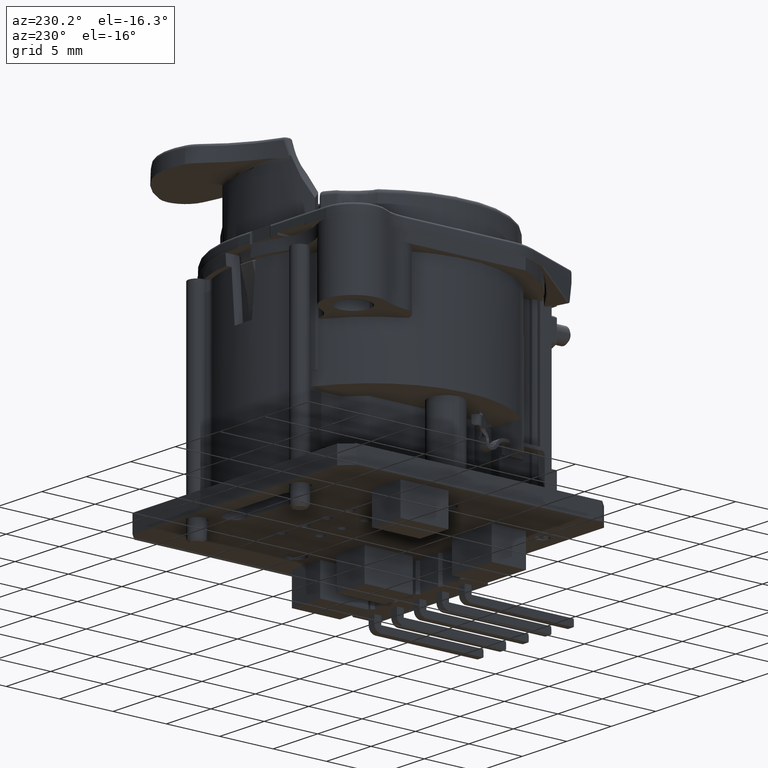
[diagram: clean part render]
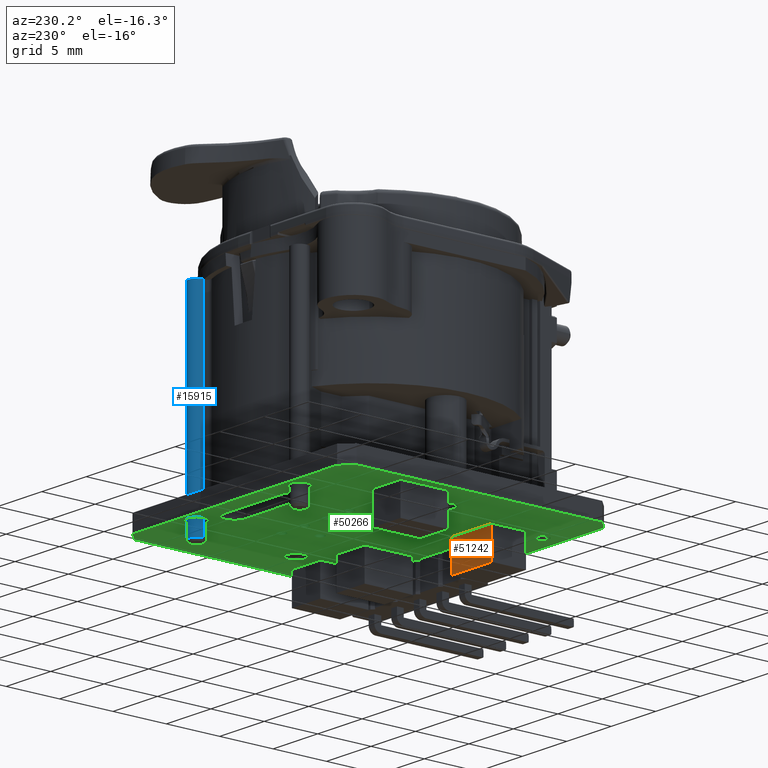
[diagram: same view with three faces highlighted in distinct colors, each labeled with its STEP entity id]
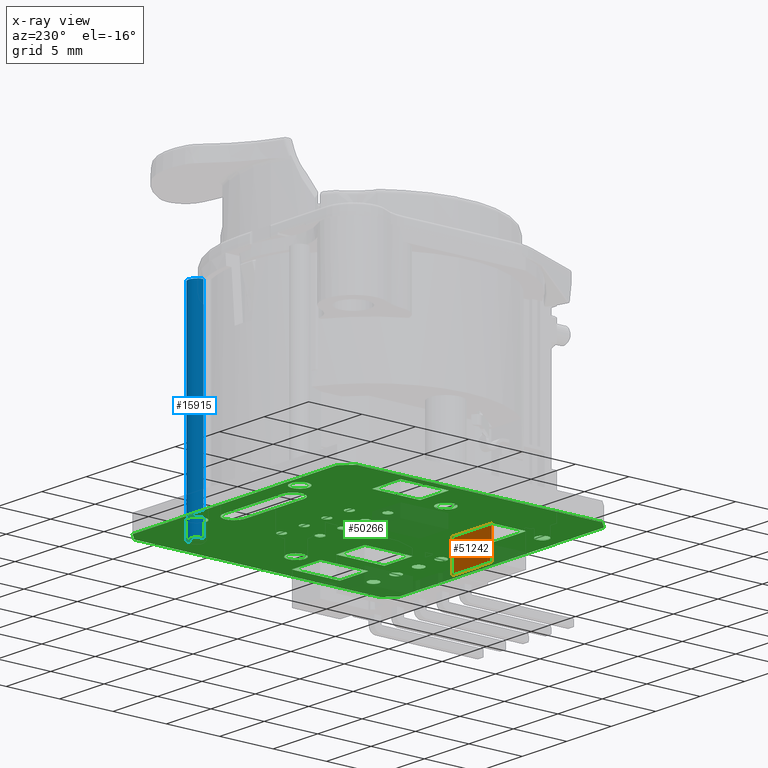
[diagram: x-ray of the same camera — body ghosted, the three highlighted faces saturated]
A machine part, auxiliary view with three faces highlighted in distinct colors.
The next image is the same camera in x-ray (body ghosted, the three faces saturated) — at least one of them is partly hidden behind the body in this view.
Their STEP definitions:

[orange] entity #51242 — the highlighted planar face has unit normal (0, 1, 0).
#49218=DIRECTION('',(1.E0,0.E0,0.E0));
#49219=VECTOR('',#49218,4.5E0);
#49220=CARTESIAN_POINT('',(-7.199764615385E0,-5.316E0,-2.26E1));
#49221=LINE('',#49220,#49219);
#49726=DIRECTION('',(1.E0,0.E0,0.E0));
#49727=VECTOR('',#49726,4.5E0);
#49728=CARTESIAN_POINT('',(-7.199764615385E0,-5.316E0,-2.55E1));
#49729=LINE('',#49728,#49727);
#49770=DIRECTION('',(0.E0,0.E0,-1.E0));
#49771=VECTOR('',#49770,2.9E0);
#49772=CARTESIAN_POINT('',(-2.699764615385E0,-5.316E0,-2.26E1));
#49773=LINE('',#49772,#49771);
#49774=DIRECTION('',(0.E0,0.E0,-1.E0));
#49775=VECTOR('',#49774,2.9E0);
#49776=CARTESIAN_POINT('',(-7.199764615385E0,-5.316E0,-2.26E1));
#49777=LINE('',#49776,#49775);
#50018=CARTESIAN_POINT('',(-2.699764615385E0,-5.316E0,-2.55E1));
#50020=VERTEX_POINT('',#50018);
#50024=CARTESIAN_POINT('',(-7.199764615385E0,-5.316E0,-2.55E1));
#50025=VERTEX_POINT('',#50024);
#50050=CARTESIAN_POINT('',(-2.699764615385E0,-5.316E0,-2.26E1));
#50052=VERTEX_POINT('',#50050);
#50056=CARTESIAN_POINT('',(-7.199764615385E0,-5.316E0,-2.26E1));
#50057=VERTEX_POINT('',#50056);
#51230=CARTESIAN_POINT('',(-7.199764615385E0,-5.316E0,-2.26E1));
#51231=DIRECTION('',(0.E0,1.E0,0.E0));
#51232=DIRECTION('',(1.E0,0.E0,0.E0));
#51233=AXIS2_PLACEMENT_3D('',#51230,#51231,#51232);
#51234=PLANE('',#51233);
#51235=ORIENTED_EDGE('',*,*,#50252,.F.);
#51237=ORIENTED_EDGE('',*,*,#51236,.T.);
#51238=ORIENTED_EDGE('',*,*,#51139,.T.);
#51239=ORIENTED_EDGE('',*,*,#51222,.F.);
#51240=EDGE_LOOP('',(#51235,#51237,#51238,#51239));
#51241=FACE_OUTER_BOUND('',#51240,.F.);
#51242=ADVANCED_FACE('',(#51241),#51234,.T.);
#50252=EDGE_CURVE('',#50057,#50052,#49221,.T.);
#51139=EDGE_CURVE('',#50025,#50020,#49729,.T.);
#51222=EDGE_CURVE('',#50052,#50020,#49773,.T.);
#51236=EDGE_CURVE('',#50057,#50025,#49777,.T.);

[blue] entity #15915 — the highlighted cylindrical surface (edge-blend (fillet) strip) has radius 0.75 mm, axis along (0, 0, -1).
#5636=CARTESIAN_POINT('',(5.79E0,1.15E1,-4.7E0));
#5637=DIRECTION('',(0.E0,0.E0,-1.E0));
#5638=DIRECTION('',(-1.E0,0.E0,0.E0));
#5639=AXIS2_PLACEMENT_3D('',#5636,#5637,#5638);
#5661=DIRECTION('',(0.E0,0.E0,-1.E0));
#5662=VECTOR('',#5661,1.94E1);
#5663=CARTESIAN_POINT('',(6.54E0,1.15E1,-4.7E0));
#5664=LINE('',#5663,#5662);
#5759=DIRECTION('',(0.E0,0.E0,-1.E0));
#5760=VECTOR('',#5759,1.94E1);
#5761=CARTESIAN_POINT('',(5.04E0,1.15E1,-4.7E0));
#5762=LINE('',#5761,#5760);
#5768=CARTESIAN_POINT('',(5.79E0,1.15E1,-2.41E1));
#5769=DIRECTION('',(0.E0,0.E0,-1.E0));
#5770=DIRECTION('',(-1.E0,0.E0,0.E0));
#5771=AXIS2_PLACEMENT_3D('',#5768,#5769,#5770);
#7152=CARTESIAN_POINT('',(5.04E0,1.15E1,-4.7E0));
#7153=CARTESIAN_POINT('',(6.54E0,1.15E1,-4.7E0));
#7154=VERTEX_POINT('',#7152);
#7155=VERTEX_POINT('',#7153);
#7733=CARTESIAN_POINT('',(5.04E0,1.15E1,-2.41E1));
#7734=CARTESIAN_POINT('',(6.54E0,1.15E1,-2.41E1));
#7735=VERTEX_POINT('',#7733);
#7736=VERTEX_POINT('',#7734);
#15903=CARTESIAN_POINT('',(5.79E0,1.15E1,-4.7E0));
#15904=DIRECTION('',(0.E0,0.E0,-1.E0));
#15905=DIRECTION('',(-1.E0,0.E0,0.E0));
#15906=AXIS2_PLACEMENT_3D('',#15903,#15904,#15905);
#15907=CYLINDRICAL_SURFACE('',#15906,7.5E-1);
#15908=ORIENTED_EDGE('',*,*,#15787,.F.);
#15909=ORIENTED_EDGE('',*,*,#15821,.T.);
#15911=ORIENTED_EDGE('',*,*,#15910,.T.);
#15912=ORIENTED_EDGE('',*,*,#15817,.F.);
#15913=EDGE_LOOP('',(#15908,#15909,#15911,#15912));
#15914=FACE_OUTER_BOUND('',#15913,.F.);
#15915=ADVANCED_FACE('',(#15914),#15907,.T.);
#5640=CIRCLE('',#5639,7.5E-1);
#5772=CIRCLE('',#5771,7.5E-1);
#15787=EDGE_CURVE('',#7154,#7155,#5640,.T.);
#15817=EDGE_CURVE('',#7155,#7736,#5664,.T.);
#15821=EDGE_CURVE('',#7154,#7735,#5762,.T.);
#15910=EDGE_CURVE('',#7735,#7736,#5772,.T.);

[green] entity #50266 — the highlighted planar face has unit normal (0, 0, 1).
#48934=DIRECTION('',(-7.071067812296E-1,-7.071067811435E-1,0.E0));
#48935=VECTOR('',#48934,1.414213562287E0);
#48936=CARTESIAN_POINT('',(1.251E1,-1.125600000012E1,-2.26E1));
#48937=LINE('',#48936,#48935);
#48938=DIRECTION('',(0.E0,1.E0,0.E0));
#48939=VECTOR('',#48938,2.300000000028E1);
#48940=CARTESIAN_POINT('',(1.251E1,-1.125600000012E1,-2.26E1));
#48941=LINE('',#48940,#48939);
#48942=DIRECTION('',(-7.071067811435E-1,7.071067812296E-1,0.E0));
#48943=VECTOR('',#48942,1.414213562059E0);
#48944=CARTESIAN_POINT('',(1.251E1,1.174400000016E1,-2.26E1));
#48945=LINE('',#48944,#48943);
#48946=DIRECTION('',(-1.E0,0.E0,0.E0));
#48947=VECTOR('',#48946,2.300000000028E1);
#48948=CARTESIAN_POINT('',(1.151000000028E1,1.2744E1,-2.26E1));
#48949=LINE('',#48948,#48947);
#48950=DIRECTION('',(-7.071067812296E-1,-7.071067811435E-1,0.E0));
#48951=VECTOR('',#48950,1.414213562287E0);
#48952=CARTESIAN_POINT('',(-1.149E1,1.2744E1,-2.26E1));
#48953=LINE('',#48952,#48951);
#48954=DIRECTION('',(0.E0,-1.E0,0.E0));
#48955=VECTOR('',#48954,2.300000000028E1);
#48956=CARTESIAN_POINT('',(-1.249E1,1.174400000012E1,-2.26E1));
#48957=LINE('',#48956,#48955);
#48958=DIRECTION('',(7.071067811437E-1,-7.071067812294E-1,0.E0));
#48959=VECTOR('',#48958,1.414213562058E0);
#48960=CARTESIAN_POINT('',(-1.249E1,-1.125600000016E1,-2.26E1));
#48961=LINE('',#48960,#48959);
#48962=DIRECTION('',(1.E0,0.E0,0.E0));
#48963=VECTOR('',#48962,2.300000000028E1);
#48964=CARTESIAN_POINT('',(-1.149000000028E1,-1.2256E1,-2.26E1));
#48965=LINE('',#48964,#48963);
#48966=DIRECTION('',(1.E0,0.E0,0.E0));
#48967=VECTOR('',#48966,6.599940000221E0);
#48968=CARTESIAN_POINT('',(-3.290930000181E0,9.049959999996E0,-2.26E1));
#48969=LINE('',#48968,#48967);
#48970=CARTESIAN_POINT('',(-3.290930989898E0,1.005297098971E1,-2.26E1));
#48971=DIRECTION('',(0.E0,0.E0,1.E0));
#48972=DIRECTION('',(-9.999999999995E-1,-9.808002866725E-7,0.E0));
#48973=AXIS2_PLACEMENT_3D('',#48970,#48971,#48972);
#48975=CARTESIAN_POINT('',(-3.290930989898E0,1.005297098971E1,-2.26E1));
#48976=DIRECTION('',(0.E0,0.E0,-1.E0));
#48977=DIRECTION('',(-9.999999999995E-1,-9.808002299998E-7,0.E0));
#48978=AXIS2_PLACEMENT_3D('',#48975,#48976,#48977);
#48980=DIRECTION('',(-9.999999036746E-1,-4.389200399742E-4,0.E0));
#48981=VECTOR('',#48980,6.734003167075E0);
#48982=CARTESIAN_POINT('',(3.309009984323E0,1.104993802056E1,-2.26E1));
#48983=LINE('',#48982,#48981);
#48984=CARTESIAN_POINT('',(3.309010989711E0,1.004994901028E1,-2.26E1));
#48985=DIRECTION('',(0.E0,0.E0,-1.E0));
#48986=DIRECTION('',(-1.005398978406E-6,9.999999999995E-1,0.E0));
#48987=AXIS2_PLACEMENT_3D('',#48984,#48985,#48986);
#48989=CARTESIAN_POINT('',(3.309010989711E0,1.004994901028E1,-2.26E1));
#48990=DIRECTION('',(0.E0,0.E0,-1.E0));
#48991=DIRECTION('',(9.999999999995E-1,9.899275929603E-7,0.E0));
#48992=AXIS2_PLACEMENT_3D('',#48989,#48990,#48991);
#48994=CARTESIAN_POINT('',(5.809E0,1.15E1,-2.26E1));
#48995=DIRECTION('',(0.E0,0.E0,-1.E0));
#48996=DIRECTION('',(-1.E0,1.337492208490E-13,0.E0));
#48997=AXIS2_PLACEMENT_3D('',#48994,#48995,#48996);
#48999=CARTESIAN_POINT('',(5.809E0,1.15E1,-2.26E1));
#49000=DIRECTION('',(0.E0,0.E0,-1.E0));
#49001=DIRECTION('',(1.E0,1.337492208490E-13,0.E0));
#49002=AXIS2_PLACEMENT_3D('',#48999,#49000,#49001);
#49004=CARTESIAN_POINT('',(-5.791E0,1.15E1,-2.26E1));
#49005=DIRECTION('',(0.E0,0.E0,-1.E0));
#49006=DIRECTION('',(-1.E0,1.337492208490E-13,0.E0));
#49007=AXIS2_PLACEMENT_3D('',#49004,#49005,#49006);
#49009=CARTESIAN_POINT('',(-5.791E0,1.15E1,-2.26E1));
#49010=DIRECTION('',(0.E0,0.E0,-1.E0));
#49011=DIRECTION('',(1.E0,1.337492208490E-13,0.E0));
#49012=AXIS2_PLACEMENT_3D('',#49009,#49010,#49011);
#49014=CARTESIAN_POINT('',(-3.200000000001E-1,-8.436E0,-2.26E1));
#49015=DIRECTION('',(0.E0,0.E0,-1.E0));
#49016=DIRECTION('',(1.E0,0.E0,0.E0));
#49017=AXIS2_PLACEMENT_3D('',#49014,#49015,#49016);
#49019=CARTESIAN_POINT('',(-3.200000000001E-1,-8.436E0,-2.26E1));
#49020=DIRECTION('',(0.E0,0.E0,-1.E0));
#49021=DIRECTION('',(-1.E0,2.842170943040E-13,0.E0));
#49022=AXIS2_PLACEMENT_3D('',#49019,#49020,#49021);
#49024=CARTESIAN_POINT('',(-6.591E0,-1.055E1,-2.26E1));
#49025=DIRECTION('',(0.E0,0.E0,-1.E0));
#49026=DIRECTION('',(-1.E0,2.842170943041E-13,0.E0));
#49027=AXIS2_PLACEMENT_3D('',#49024,#49025,#49026);
#49029=CARTESIAN_POINT('',(-6.591E0,-1.055E1,-2.26E1));
#49030=DIRECTION('',(0.E0,0.E0,-1.E0));
#49031=DIRECTION('',(1.E0,-4.736951571734E-14,0.E0));
#49032=AXIS2_PLACEMENT_3D('',#49029,#49030,#49031);
#49034=CARTESIAN_POINT('',(-8.421E0,1.989519660128E-13,-2.26E1));
#49035=DIRECTION('',(0.E0,0.E0,-1.E0));
#49036=DIRECTION('',(-1.E0,-6.687461042448E-14,0.E0));
#49037=AXIS2_PLACEMENT_3D('',#49034,#49035,#49036);
#49039=CARTESIAN_POINT('',(-8.421E0,1.421085471520E-13,-2.26E1));
#49040=DIRECTION('',(0.E0,0.E0,-1.E0));
#49041=DIRECTION('',(1.E0,0.E0,0.E0));
#49042=AXIS2_PLACEMENT_3D('',#49039,#49040,#49041);
#49044=CARTESIAN_POINT('',(8.429E0,1.421085471520E-13,-2.26E1));
#49045=DIRECTION('',(0.E0,0.E0,-1.E0));
#49046=DIRECTION('',(-1.E0,0.E0,0.E0));
#49047=AXIS2_PLACEMENT_3D('',#49044,#49045,#49046);
#49049=CARTESIAN_POINT('',(8.429E0,1.421085471520E-13,-2.26E1));
#49050=DIRECTION('',(0.E0,0.E0,-1.E0));
#49051=DIRECTION('',(1.E0,0.E0,0.E0));
#49052=AXIS2_PLACEMENT_3D('',#49049,#49050,#49051);
#49054=CARTESIAN_POINT('',(-4.431E0,2.11E0,-2.26E1));
#49055=DIRECTION('',(0.E0,0.E0,-1.E0));
#49056=DIRECTION('',(1.E0,0.E0,0.E0));
#49057=AXIS2_PLACEMENT_3D('',#49054,#49055,#49056);
#49059=CARTESIAN_POINT('',(-4.431E0,2.11E0,-2.26E1));
#49060=DIRECTION('',(0.E0,0.E0,-1.E0));
#49061=DIRECTION('',(-1.E0,-2.131628207280E-13,0.E0));
#49062=AXIS2_PLACEMENT_3D('',#49059,#49060,#49061);
#49064=CARTESIAN_POINT('',(-3.161E0,4.65E0,-2.26E1));
#49065=DIRECTION('',(0.E0,0.E0,-1.E0));
#49066=DIRECTION('',(-1.E0,0.E0,0.E0));
#49067=AXIS2_PLACEMENT_3D('',#49064,#49065,#49066);
#49069=CARTESIAN_POINT('',(-3.161E0,4.65E0,-2.26E1));
#49070=DIRECTION('',(0.E0,0.E0,-1.E0));
#49071=DIRECTION('',(1.E0,0.E0,0.E0));
#49072=AXIS2_PLACEMENT_3D('',#49069,#49070,#49071);
#49074=CARTESIAN_POINT('',(-1.891E0,2.11E0,-2.26E1));
#49075=DIRECTION('',(0.E0,0.E0,-1.E0));
#49076=DIRECTION('',(1.E0,0.E0,0.E0));
#49077=AXIS2_PLACEMENT_3D('',#49074,#49075,#49076);
#49079=CARTESIAN_POINT('',(-1.891E0,2.11E0,-2.26E1));
#49080=DIRECTION('',(0.E0,0.E0,-1.E0));
#49081=DIRECTION('',(-1.E0,0.E0,0.E0));
#49082=AXIS2_PLACEMENT_3D('',#49079,#49080,#49081);
#49084=CARTESIAN_POINT('',(-6.210000000001E-1,4.65E0,-2.26E1));
#49085=DIRECTION('',(0.E0,0.E0,-1.E0));
#49086=DIRECTION('',(-1.E0,-1.421085471520E-13,0.E0));
#49087=AXIS2_PLACEMENT_3D('',#49084,#49085,#49086);
#49089=CARTESIAN_POINT('',(-6.210000000001E-1,4.65E0,-2.26E1));
#49090=DIRECTION('',(0.E0,0.E0,-1.E0));
#49091=DIRECTION('',(1.E0,1.421085471520E-13,0.E0));
#49092=AXIS2_PLACEMENT_3D('',#49089,#49090,#49091);
#49094=CARTESIAN_POINT('',(6.489999999999E-1,2.11E0,-2.26E1));
#49095=DIRECTION('',(0.E0,0.E0,-1.E0));
#49096=DIRECTION('',(-1.E0,0.E0,0.E0));
#49097=AXIS2_PLACEMENT_3D('',#49094,#49095,#49096);
#49099=CARTESIAN_POINT('',(6.489999999999E-1,2.11E0,-2.26E1));
#49100=DIRECTION('',(0.E0,0.E0,-1.E0));
#49101=DIRECTION('',(1.E0,0.E0,0.E0));
#49102=AXIS2_PLACEMENT_3D('',#49099,#49100,#49101);
#49104=CARTESIAN_POINT('',(3.189E0,2.11E0,-2.26E1));
#49105=DIRECTION('',(0.E0,0.E0,-1.E0));
#49106=DIRECTION('',(-1.E0,-2.131628207280E-13,0.E0));
#49107=AXIS2_PLACEMENT_3D('',#49104,#49105,#49106);
#49109=CARTESIAN_POINT('',(3.189E0,2.11E0,-2.26E1));
#49110=DIRECTION('',(0.E0,0.E0,-1.E0));
#49111=DIRECTION('',(1.E0,0.E0,0.E0));
#49112=AXIS2_PLACEMENT_3D('',#49109,#49110,#49111);
#49114=CARTESIAN_POINT('',(1.919E0,4.65E0,-2.26E1));
#49115=DIRECTION('',(0.E0,0.E0,-1.E0));
#49116=DIRECTION('',(-1.E0,1.421085471520E-13,0.E0));
#49117=AXIS2_PLACEMENT_3D('',#49114,#49115,#49116);
#49119=CARTESIAN_POINT('',(1.919E0,4.65E0,-2.26E1));
#49120=DIRECTION('',(0.E0,0.E0,-1.E0));
#49121=DIRECTION('',(1.E0,0.E0,0.E0));
#49122=AXIS2_PLACEMENT_3D('',#49119,#49120,#49121);
#49124=CARTESIAN_POINT('',(4.459E0,4.65E0,-2.26E1));
#49125=DIRECTION('',(0.E0,0.E0,-1.E0));
#49126=DIRECTION('',(-1.E0,0.E0,0.E0));
#49127=AXIS2_PLACEMENT_3D('',#49124,#49125,#49126);
#49129=CARTESIAN_POINT('',(4.459E0,4.65E0,-2.26E1));
#49130=DIRECTION('',(0.E0,0.E0,-1.E0));
#49131=DIRECTION('',(1.E0,1.421085471520E-13,0.E0));
#49132=AXIS2_PLACEMENT_3D('',#49129,#49130,#49131);
#49134=CARTESIAN_POINT('',(2.22E0,-8.436E0,-2.26E1));
#49135=DIRECTION('',(0.E0,0.E0,-1.E0));
#49136=DIRECTION('',(-1.E0,0.E0,0.E0));
#49137=AXIS2_PLACEMENT_3D('',#49134,#49135,#49136);
#49139=CARTESIAN_POINT('',(2.22E0,-8.436E0,-2.26E1));
#49140=DIRECTION('',(0.E0,0.E0,-1.E0));
#49141=DIRECTION('',(1.E0,0.E0,0.E0));
#49142=AXIS2_PLACEMENT_3D('',#49139,#49140,#49141);
#49144=CARTESIAN_POINT('',(4.76E0,-8.436E0,-2.26E1));
#49145=DIRECTION('',(0.E0,0.E0,-1.E0));
#49146=DIRECTION('',(-1.E0,0.E0,0.E0));
#49147=AXIS2_PLACEMENT_3D('',#49144,#49145,#49146);
#49149=CARTESIAN_POINT('',(4.76E0,-8.436E0,-2.26E1));
#49150=DIRECTION('',(0.E0,0.E0,-1.E0));
#49151=DIRECTION('',(1.E0,0.E0,0.E0));
#49152=AXIS2_PLACEMENT_3D('',#49149,#49150,#49151);
#49154=CARTESIAN_POINT('',(7.3E0,-8.436E0,-2.26E1));
#49155=DIRECTION('',(0.E0,0.E0,-1.E0));
#49156=DIRECTION('',(-1.E0,5.684341886081E-14,0.E0));
#49157=AXIS2_PLACEMENT_3D('',#49154,#49155,#49156);
#49159=CARTESIAN_POINT('',(7.3E0,-8.436E0,-2.26E1));
#49160=DIRECTION('',(0.E0,0.E0,-1.E0));
#49161=DIRECTION('',(1.E0,0.E0,0.E0));
#49162=AXIS2_PLACEMENT_3D('',#49159,#49160,#49161);
#49164=CARTESIAN_POINT('',(9.84E0,-8.436E0,-2.26E1));
#49165=DIRECTION('',(0.E0,0.E0,-1.E0));
#49166=DIRECTION('',(-1.E0,-1.705302565824E-13,0.E0));
#49167=AXIS2_PLACEMENT_3D('',#49164,#49165,#49166);
#49169=CARTESIAN_POINT('',(9.84E0,-8.436E0,-2.26E1));
#49170=DIRECTION('',(0.E0,0.E0,-1.E0));
#49171=DIRECTION('',(1.E0,0.E0,0.E0));
#49172=AXIS2_PLACEMENT_3D('',#49169,#49170,#49171);
#49174=DIRECTION('',(1.E0,0.E0,0.E0));
#49175=VECTOR('',#49174,3.2E0);
#49176=CARTESIAN_POINT('',(7.936E0,-1.866E0,-2.26E1));
#49177=LINE('',#49176,#49175);
#49178=DIRECTION('',(0.E0,-1.E0,0.E0));
#49179=VECTOR('',#49178,4.5E0);
#49180=CARTESIAN_POINT('',(1.1136E1,-1.866E0,-2.26E1));
#49181=LINE('',#49180,#49179);
#49182=DIRECTION('',(-1.E0,0.E0,0.E0));
#49183=VECTOR('',#49182,3.2E0);
#49184=CARTESIAN_POINT('',(1.1136E1,-6.366E0,-2.26E1));
#49185=LINE('',#49184,#49183);
#49186=DIRECTION('',(0.E0,1.E0,0.E0));
#49187=VECTOR('',#49186,4.5E0);
#49188=CARTESIAN_POINT('',(7.936E0,-6.366E0,-2.26E1));
#49189=LINE('',#49188,#49187);
#49190=DIRECTION('',(1.E0,0.E0,0.E0));
#49191=VECTOR('',#49190,3.2E0);
#49192=CARTESIAN_POINT('',(2.946E0,-1.866E0,-2.26E1));
#49193=LINE('',#49192,#49191);
#49194=DIRECTION('',(0.E0,-1.E0,0.E0));
#49195=VECTOR('',#49194,4.5E0);
#49196=CARTESIAN_POINT('',(6.146E0,-1.866E0,-2.26E1));
#49197=LINE('',#49196,#49195);
#49198=DIRECTION('',(-1.E0,0.E0,0.E0));
#49199=VECTOR('',#49198,3.2E0);
#49200=CARTESIAN_POINT('',(6.146E0,-6.366E0,-2.26E1));
#49201=LINE('',#49200,#49199);
#49202=DIRECTION('',(0.E0,1.E0,0.E0));
#49203=VECTOR('',#49202,4.5E0);
#49204=CARTESIAN_POINT('',(2.946E0,-6.366E0,-2.26E1));
#49205=LINE('',#49204,#49203);
#49206=DIRECTION('',(0.E0,-1.E0,0.E0));
#49207=VECTOR('',#49206,3.205E0);
#49208=CARTESIAN_POINT('',(-2.699764615385E0,-5.316E0,-2.26E1));
#49209=LINE('',#49208,#49207);
#49210=DIRECTION('',(-1.E0,0.E0,0.E0));
#49211=VECTOR('',#49210,4.5E0);
#49212=CARTESIAN_POINT('',(-2.699764615385E0,-8.521E0,-2.26E1));
#49213=LINE('',#49212,#49211);
#49214=DIRECTION('',(0.E0,1.E0,0.E0));
#49215=VECTOR('',#49214,3.205E0);
#49216=CARTESIAN_POINT('',(-7.199764615385E0,-8.521E0,-2.26E1));
#49217=LINE('',#49216,#49215);
#49218=DIRECTION('',(1.E0,0.E0,0.E0));
#49219=VECTOR('',#49218,4.5E0);
#49220=CARTESIAN_POINT('',(-7.199764615385E0,-5.316E0,-2.26E1));
#49221=LINE('',#49220,#49219);
#49222=DIRECTION('',(0.E0,-1.E0,0.E0));
#49223=VECTOR('',#49222,4.5E0);
#49224=CARTESIAN_POINT('',(-8.444764615385E0,6.934E0,-2.26E1));
#49225=LINE('',#49224,#49223);
#49226=DIRECTION('',(-1.E0,0.E0,0.E0));
#49227=VECTOR('',#49226,3.2E0);
#49228=CARTESIAN_POINT('',(-8.444764615385E0,2.434E0,-2.26E1));
#49229=LINE('',#49228,#49227);
#49230=DIRECTION('',(0.E0,1.E0,0.E0));
#49231=VECTOR('',#49230,4.5E0);
#49232=CARTESIAN_POINT('',(-1.164476461538E1,2.434E0,-2.26E1));
#49233=LINE('',#49232,#49231);
#49234=DIRECTION('',(1.E0,0.E0,0.E0));
#49235=VECTOR('',#49234,3.2E0);
#49236=CARTESIAN_POINT('',(-1.164476461538E1,6.934E0,-2.26E1));
#49237=LINE('',#49236,#49235);
#49802=CARTESIAN_POINT('',(1.251E1,-1.125600000012E1,-2.26E1));
#49803=CARTESIAN_POINT('',(1.151E1,-1.2256E1,-2.26E1));
#49804=VERTEX_POINT('',#49802);
#49805=VERTEX_POINT('',#49803);
#49806=CARTESIAN_POINT('',(3.309009984323E0,1.104993802056E1,-2.26E1));
#49807=CARTESIAN_POINT('',(-3.424992534096E0,1.104698233162E1,-2.26E1));
#49808=VERTEX_POINT('',#49806);
#49809=VERTEX_POINT('',#49807);
#49810=CARTESIAN_POINT('',(-4.293941979608E0,1.005297000595E1,-2.26E1));
#49811=CARTESIAN_POINT('',(-3.290930000181E0,9.049959999996E0,-2.26E1));
#49812=VERTEX_POINT('',#49810);
#49813=VERTEX_POINT('',#49811);
#49814=CARTESIAN_POINT('',(3.309010000041E0,9.049959999996E0,-2.26E1));
#49815=VERTEX_POINT('',#49814);
#49830=CARTESIAN_POINT('',(1.251E1,1.174400000016E1,-2.26E1));
#49831=VERTEX_POINT('',#49830);
#49832=CARTESIAN_POINT('',(1.151000000028E1,1.2744E1,-2.26E1));
#49833=VERTEX_POINT('',#49832);
#49834=CARTESIAN_POINT('',(-1.149E1,1.2744E1,-2.26E1));
#49835=VERTEX_POINT('',#49834);
#49836=CARTESIAN_POINT('',(-1.249E1,1.174400000012E1,-2.26E1));
#49837=VERTEX_POINT('',#49836);
#49838=CARTESIAN_POINT('',(-1.249E1,-1.125600000016E1,-2.26E1));
#49839=VERTEX_POINT('',#49838);
#49840=CARTESIAN_POINT('',(-1.149000000028E1,-1.2256E1,-2.26E1));
#49841=VERTEX_POINT('',#49840);
#49842=CARTESIAN_POINT('',(4.308999999991E0,1.004995000019E1,-2.26E1));
#49843=VERTEX_POINT('',#49842);
#49844=CARTESIAN_POINT('',(4.959E0,1.15E1,-2.26E1));
#49845=CARTESIAN_POINT('',(6.659E0,1.15E1,-2.26E1));
#49846=VERTEX_POINT('',#49844);
#49847=VERTEX_POINT('',#49845);
#49848=CARTESIAN_POINT('',(-6.641E0,1.15E1,-2.26E1));
#49849=CARTESIAN_POINT('',(-4.941E0,1.15E1,-2.26E1));
#49850=VERTEX_POINT('',#49848);
#49851=VERTEX_POINT('',#49849);
#49852=CARTESIAN_POINT('',(1.799999999999E-1,-8.436E0,-2.26E1));
#49853=CARTESIAN_POINT('',(-8.200000000001E-1,-8.436E0,-2.26E1));
#49854=VERTEX_POINT('',#49852);
#49855=VERTEX_POINT('',#49853);
#49856=CARTESIAN_POINT('',(-7.191E0,-1.055E1,-2.26E1));
#49857=CARTESIAN_POINT('',(-5.991E0,-1.055E1,-2.26E1));
#49858=VERTEX_POINT('',#49856);
#49859=VERTEX_POINT('',#49857);
#49860=CARTESIAN_POINT('',(-9.271E0,1.421085471520E-13,-2.26E1));
#49861=CARTESIAN_POINT('',(-7.571E0,1.422792555114E-13,-2.26E1));
#49862=VERTEX_POINT('',#49860);
#49863=VERTEX_POINT('',#49861);
#49864=CARTESIAN_POINT('',(7.579E0,1.421085471520E-13,-2.26E1));
#49865=CARTESIAN_POINT('',(9.279E0,1.422126421299E-13,-2.26E1));
#49866=VERTEX_POINT('',#49864);
#49867=VERTEX_POINT('',#49865);
#49868=CARTESIAN_POINT('',(-4.031E0,2.11E0,-2.26E1));
#49869=CARTESIAN_POINT('',(-4.831E0,2.11E0,-2.26E1));
#49870=VERTEX_POINT('',#49868);
#49871=VERTEX_POINT('',#49869);
#49872=CARTESIAN_POINT('',(-3.561E0,4.65E0,-2.26E1));
#49873=CARTESIAN_POINT('',(-2.761E0,4.65E0,-2.26E1));
#49874=VERTEX_POINT('',#49872);
#49875=VERTEX_POINT('',#49873);
#49876=CARTESIAN_POINT('',(-1.491E0,2.11E0,-2.26E1));
#49877=CARTESIAN_POINT('',(-2.291E0,2.11E0,-2.26E1));
#49878=VERTEX_POINT('',#49876);
#49879=VERTEX_POINT('',#49877);
#49880=CARTESIAN_POINT('',(-1.021E0,4.65E0,-2.26E1));
#49881=CARTESIAN_POINT('',(-2.210000000001E-1,4.65E0,-2.26E1));
#49882=VERTEX_POINT('',#49880);
#49883=VERTEX_POINT('',#49881);
#49884=CARTESIAN_POINT('',(2.489999999999E-1,2.11E0,-2.26E1));
#49885=CARTESIAN_POINT('',(1.049E0,2.11E0,-2.26E1));
#49886=VERTEX_POINT('',#49884);
#49887=VERTEX_POINT('',#49885);
#49888=CARTESIAN_POINT('',(2.789E0,2.11E0,-2.26E1));
#49889=CARTESIAN_POINT('',(3.589E0,2.11E0,-2.26E1));
#49890=VERTEX_POINT('',#49888);
#49891=VERTEX_POINT('',#49889);
#49892=CARTESIAN_POINT('',(1.519E0,4.65E0,-2.26E1));
#49893=CARTESIAN_POINT('',(2.319E0,4.65E0,-2.26E1));
#49894=VERTEX_POINT('',#49892);
#49895=VERTEX_POINT('',#49893);
#49896=CARTESIAN_POINT('',(4.059E0,4.65E0,-2.26E1));
#49897=CARTESIAN_POINT('',(4.859E0,4.65E0,-2.26E1));
#49898=VERTEX_POINT('',#49896);
#49899=VERTEX_POINT('',#49897);
#49900=CARTESIAN_POINT('',(1.72E0,-8.436E0,-2.26E1));
#49901=CARTESIAN_POINT('',(2.72E0,-8.436E0,-2.26E1));
#49902=VERTEX_POINT('',#49900);
#49903=VERTEX_POINT('',#49901);
#49904=CARTESIAN_POINT('',(4.26E0,-8.436E0,-2.26E1));
#49905=CARTESIAN_POINT('',(5.26E0,-8.436E0,-2.26E1));
#49906=VERTEX_POINT('',#49904);
#49907=VERTEX_POINT('',#49905);
#49908=CARTESIAN_POINT('',(6.8E0,-8.436E0,-2.26E1));
#49909=CARTESIAN_POINT('',(7.8E0,-8.436E0,-2.26E1));
#49910=VERTEX_POINT('',#49908);
#49911=VERTEX_POINT('',#49909);
#49912=CARTESIAN_POINT('',(9.34E0,-8.436E0,-2.26E1));
#49913=CARTESIAN_POINT('',(1.034E1,-8.436E0,-2.26E1));
#49914=VERTEX_POINT('',#49912);
#49915=VERTEX_POINT('',#49913);
#50034=CARTESIAN_POINT('',(7.936E0,-1.866E0,-2.26E1));
#50035=CARTESIAN_POINT('',(1.1136E1,-1.866E0,-2.26E1));
#50036=VERTEX_POINT('',#50034);
#50037=VERTEX_POINT('',#50035);
#50038=CARTESIAN_POINT('',(1.1136E1,-6.366E0,-2.26E1));
#50039=VERTEX_POINT('',#50038);
#50040=CARTESIAN_POINT('',(7.936E0,-6.366E0,-2.26E1));
#50041=VERTEX_POINT('',#50040);
#50042=CARTESIAN_POINT('',(2.946E0,-1.866E0,-2.26E1));
#50043=CARTESIAN_POINT('',(6.146E0,-1.866E0,-2.26E1));
#50044=VERTEX_POINT('',#50042);
#50045=VERTEX_POINT('',#50043);
#50046=CARTESIAN_POINT('',(6.146E0,-6.366E0,-2.26E1));
#50047=VERTEX_POINT('',#50046);
#50048=CARTESIAN_POINT('',(2.946E0,-6.366E0,-2.26E1));
#50049=VERTEX_POINT('',#50048);
#50050=CARTESIAN_POINT('',(-2.699764615385E0,-5.316E0,-2.26E1));
#50051=CARTESIAN_POINT('',(-2.699764615385E0,-8.521E0,-2.26E1));
#50052=VERTEX_POINT('',#50050);
#50053=VERTEX_POINT('',#50051);
#50054=CARTESIAN_POINT('',(-7.199764615385E0,-8.521E0,-2.26E1));
#50055=VERTEX_POINT('',#50054);
#50056=CARTESIAN_POINT('',(-7.199764615385E0,-5.316E0,-2.26E1));
#50057=VERTEX_POINT('',#50056);
#50058=CARTESIAN_POINT('',(-8.444764615385E0,6.934E0,-2.26E1));
#50059=CARTESIAN_POINT('',(-8.444764615385E0,2.434E0,-2.26E1));
#50060=VERTEX_POINT('',#50058);
#50061=VERTEX_POINT('',#50059);
#50062=CARTESIAN_POINT('',(-1.164476461538E1,2.434E0,-2.26E1));
#50063=VERTEX_POINT('',#50062);
#50064=CARTESIAN_POINT('',(-1.164476461538E1,6.934E0,-2.26E1));
#50065=VERTEX_POINT('',#50064);
#50082=CARTESIAN_POINT('',(-2.3455E2,-2.47816E2,-2.26E1));
#50083=DIRECTION('',(0.E0,0.E0,1.E0));
#50084=DIRECTION('',(-1.E0,0.E0,0.E0));
#50085=AXIS2_PLACEMENT_3D('',#50082,#50083,#50084);
#50086=PLANE('',#50085);
#50088=ORIENTED_EDGE('',*,*,#50087,.F.);
#50090=ORIENTED_EDGE('',*,*,#50089,.T.);
#50092=ORIENTED_EDGE('',*,*,#50091,.T.);
#50094=ORIENTED_EDGE('',*,*,#50093,.T.);
#50096=ORIENTED_EDGE('',*,*,#50095,.T.);
#50098=ORIENTED_EDGE('',*,*,#50097,.T.);
#50100=ORIENTED_EDGE('',*,*,#50099,.T.);
#50102=ORIENTED_EDGE('',*,*,#50101,.T.);
#50103=EDGE_LOOP('',(#50088,#50090,#50092,#50094,#50096,#50098,#50100,#50102));
#50104=FACE_OUTER_BOUND('',#50103,.F.);
#50106=ORIENTED_EDGE('',*,*,#50105,.F.);
#50108=ORIENTED_EDGE('',*,*,#50107,.F.);
#50110=ORIENTED_EDGE('',*,*,#50109,.T.);
#50112=ORIENTED_EDGE('',*,*,#50111,.F.);
#50114=ORIENTED_EDGE('',*,*,#50113,.T.);
#50116=ORIENTED_EDGE('',*,*,#50115,.T.);
#50117=EDGE_LOOP('',(#50106,#50108,#50110,#50112,#50114,#50116));
#50118=FACE_BOUND('',#50117,.F.);
#50120=ORIENTED_EDGE('',*,*,#50119,.T.);
#50122=ORIENTED_EDGE('',*,*,#50121,.T.);
#50123=EDGE_LOOP('',(#50120,#50122));
#50124=FACE_BOUND('',#50123,.F.);
#50126=ORIENTED_EDGE('',*,*,#50125,.T.);
#50128=ORIENTED_EDGE('',*,*,#50127,.T.);
#50129=EDGE_LOOP('',(#50126,#50128));
#50130=FACE_BOUND('',#50129,.F.);
#50132=ORIENTED_EDGE('',*,*,#50131,.T.);
#50134=ORIENTED_EDGE('',*,*,#50133,.T.);
#50135=EDGE_LOOP('',(#50132,#50134));
#50136=FACE_BOUND('',#50135,.F.);
#50138=ORIENTED_EDGE('',*,*,#50137,.T.);
#50140=ORIENTED_EDGE('',*,*,#50139,.T.);
#50141=EDGE_LOOP('',(#50138,#50140));
#50142=FACE_BOUND('',#50141,.F.);
#50144=ORIENTED_EDGE('',*,*,#50143,.T.);
#50146=ORIENTED_EDGE('',*,*,#50145,.T.);
#50147=EDGE_LOOP('',(#50144,#50146));
#50148=FACE_BOUND('',#50147,.F.);
#50150=ORIENTED_EDGE('',*,*,#50149,.T.);
#50152=ORIENTED_EDGE('',*,*,#50151,.T.);
#50153=EDGE_LOOP('',(#50150,#50152));
#50154=FACE_BOUND('',#50153,.F.);
#50156=ORIENTED_EDGE('',*,*,#50155,.T.);
#50158=ORIENTED_EDGE('',*,*,#50157,.T.);
#50159=EDGE_LOOP('',(#50156,#50158));
#50160=FACE_BOUND('',#50159,.F.);
#50162=ORIENTED_EDGE('',*,*,#50161,.T.);
#50164=ORIENTED_EDGE('',*,*,#50163,.T.);
#50165=EDGE_LOOP('',(#50162,#50164));
#50166=FACE_BOUND('',#50165,.F.);
#50168=ORIENTED_EDGE('',*,*,#50167,.T.);
#50170=ORIENTED_EDGE('',*,*,#50169,.T.);
#50171=EDGE_LOOP('',(#50168,#50170));
#50172=FACE_BOUND('',#50171,.F.);
#50174=ORIENTED_EDGE('',*,*,#50173,.T.);
#50176=ORIENTED_EDGE('',*,*,#50175,.T.);
#50177=EDGE_LOOP('',(#50174,#50176));
#50178=FACE_BOUND('',#50177,.F.);
#50180=ORIENTED_EDGE('',*,*,#50179,.T.);
#50182=ORIENTED_EDGE('',*,*,#50181,.T.);
#50183=EDGE_LOOP('',(#50180,#50182));
#50184=FACE_BOUND('',#50183,.F.);
#50186=ORIENTED_EDGE('',*,*,#50185,.T.);
#50188=ORIENTED_EDGE('',*,*,#50187,.T.);
#50189=EDGE_LOOP('',(#50186,#50188));
#50190=FACE_BOUND('',#50189,.F.);
#50192=ORIENTED_EDGE('',*,*,#50191,.T.);
#50194=ORIENTED_EDGE('',*,*,#50193,.T.);
#50195=EDGE_LOOP('',(#50192,#50194));
#50196=FACE_BOUND('',#50195,.F.);
#50198=ORIENTED_EDGE('',*,*,#50197,.T.);
#50200=ORIENTED_EDGE('',*,*,#50199,.T.);
#50201=EDGE_LOOP('',(#50198,#50200));
#50202=FACE_BOUND('',#50201,.F.);
#50204=ORIENTED_EDGE('',*,*,#50203,.T.);
#50206=ORIENTED_EDGE('',*,*,#50205,.T.);
#50207=EDGE_LOOP('',(#50204,#50206));
#50208=FACE_BOUND('',#50207,.F.);
#50210=ORIENTED_EDGE('',*,*,#50209,.T.);
#50212=ORIENTED_EDGE('',*,*,#50211,.T.);
#50213=EDGE_LOOP('',(#50210,#50212));
#50214=FACE_BOUND('',#50213,.F.);
#50216=ORIENTED_EDGE('',*,*,#50215,.T.);
#50218=ORIENTED_EDGE('',*,*,#50217,.T.);
#50219=EDGE_LOOP('',(#50216,#50218));
#50220=FACE_BOUND('',#50219,.F.);
#50222=ORIENTED_EDGE('',*,*,#50221,.T.);
#50223=ORIENTED_EDGE('',*,*,#50071,.T.);
#50224=EDGE_LOOP('',(#50222,#50223));
#50225=FACE_BOUND('',#50224,.F.);
#50227=ORIENTED_EDGE('',*,*,#50226,.T.);
#50229=ORIENTED_EDGE('',*,*,#50228,.T.);
#50231=ORIENTED_EDGE('',*,*,#50230,.T.);
#50233=ORIENTED_EDGE('',*,*,#50232,.T.);
#50234=EDGE_LOOP('',(#50227,#50229,#50231,#50233));
#50235=FACE_BOUND('',#50234,.F.);
#50237=ORIENTED_EDGE('',*,*,#50236,.T.);
#50239=ORIENTED_EDGE('',*,*,#50238,.T.);
#50241=ORIENTED_EDGE('',*,*,#50240,.T.);
#50243=ORIENTED_EDGE('',*,*,#50242,.T.);
#50244=EDGE_LOOP('',(#50237,#50239,#50241,#50243));
#50245=FACE_BOUND('',#50244,.F.);
#50247=ORIENTED_EDGE('',*,*,#50246,.T.);
#50249=ORIENTED_EDGE('',*,*,#50248,.T.);
#50251=ORIENTED_EDGE('',*,*,#50250,.T.);
#50253=ORIENTED_EDGE('',*,*,#50252,.T.);
#50254=EDGE_LOOP('',(#50247,#50249,#50251,#50253));
#50255=FACE_BOUND('',#50254,.F.);
#50257=ORIENTED_EDGE('',*,*,#50256,.T.);
#50259=ORIENTED_EDGE('',*,*,#50258,.T.);
#50261=ORIENTED_EDGE('',*,*,#50260,.T.);
#50263=ORIENTED_EDGE('',*,*,#50262,.T.);
#50264=EDGE_LOOP('',(#50257,#50259,#50261,#50263));
#50265=FACE_BOUND('',#50264,.F.);
#50266=ADVANCED_FACE('',(#50104,#50118,#50124,#50130,#50136,#50142,#50148,
#50154,#50160,#50166,#50172,#50178,#50184,#50190,#50196,#50202,#50208,#50214,
#50220,#50225,#50235,#50245,#50255,#50265),#50086,.F.);
#48974=CIRCLE('',#48973,1.003010989711E0);
#48979=CIRCLE('',#48978,1.003010989711E0);
#48988=CIRCLE('',#48987,9.999890102805E-1);
#48993=CIRCLE('',#48992,9.999890102805E-1);
#48998=CIRCLE('',#48997,8.5E-1);
#49003=CIRCLE('',#49002,8.5E-1);
#49008=CIRCLE('',#49007,8.5E-1);
#49013=CIRCLE('',#49012,8.5E-1);
#49018=CIRCLE('',#49017,5.E-1);
#49023=CIRCLE('',#49022,5.E-1);
#49028=CIRCLE('',#49027,6.E-1);
#49033=CIRCLE('',#49032,6.E-1);
#49038=CIRCLE('',#49037,8.5E-1);
#49043=CIRCLE('',#49042,8.5E-1);
#49048=CIRCLE('',#49047,8.5E-1);
#49053=CIRCLE('',#49052,8.5E-1);
#49058=CIRCLE('',#49057,4.E-1);
#49063=CIRCLE('',#49062,4.E-1);
#49068=CIRCLE('',#49067,4.E-1);
#49073=CIRCLE('',#49072,4.E-1);
#49078=CIRCLE('',#49077,4.E-1);
#49083=CIRCLE('',#49082,4.E-1);
#49088=CIRCLE('',#49087,4.E-1);
#49093=CIRCLE('',#49092,4.E-1);
#49098=CIRCLE('',#49097,4.E-1);
#49103=CIRCLE('',#49102,4.E-1);
#49108=CIRCLE('',#49107,4.E-1);
#49113=CIRCLE('',#49112,4.E-1);
#49118=CIRCLE('',#49117,4.E-1);
#49123=CIRCLE('',#49122,4.E-1);
#49128=CIRCLE('',#49127,4.E-1);
#49133=CIRCLE('',#49132,4.E-1);
#49138=CIRCLE('',#49137,5.E-1);
#49143=CIRCLE('',#49142,5.E-1);
#49148=CIRCLE('',#49147,5.E-1);
#49153=CIRCLE('',#49152,5.E-1);
#49158=CIRCLE('',#49157,5.E-1);
#49163=CIRCLE('',#49162,5.E-1);
#49168=CIRCLE('',#49167,5.E-1);
#49173=CIRCLE('',#49172,5.E-1);
#50071=EDGE_CURVE('',#49915,#49914,#49173,.T.);
#50087=EDGE_CURVE('',#49804,#49805,#48937,.T.);
#50089=EDGE_CURVE('',#49804,#49831,#48941,.T.);
#50091=EDGE_CURVE('',#49831,#49833,#48945,.T.);
#50093=EDGE_CURVE('',#49833,#49835,#48949,.T.);
#50095=EDGE_CURVE('',#49835,#49837,#48953,.T.);
#50097=EDGE_CURVE('',#49837,#49839,#48957,.T.);
#50099=EDGE_CURVE('',#49839,#49841,#48961,.T.);
#50101=EDGE_CURVE('',#49841,#49805,#48965,.T.);
#50105=EDGE_CURVE('',#49813,#49815,#48969,.T.);
#50107=EDGE_CURVE('',#49812,#49813,#48974,.T.);
#50109=EDGE_CURVE('',#49812,#49809,#48979,.T.);
#50111=EDGE_CURVE('',#49808,#49809,#48983,.T.);
#50113=EDGE_CURVE('',#49808,#49843,#48988,.T.);
#50115=EDGE_CURVE('',#49843,#49815,#48993,.T.);
#50119=EDGE_CURVE('',#49846,#49847,#48998,.T.);
#50121=EDGE_CURVE('',#49847,#49846,#49003,.T.);
#50125=EDGE_CURVE('',#49850,#49851,#49008,.T.);
#50127=EDGE_CURVE('',#49851,#49850,#49013,.T.);
#50131=EDGE_CURVE('',#49854,#49855,#49018,.T.);
#50133=EDGE_CURVE('',#49855,#49854,#49023,.T.);
#50137=EDGE_CURVE('',#49858,#49859,#49028,.T.);
#50139=EDGE_CURVE('',#49859,#49858,#49033,.T.);
#50143=EDGE_CURVE('',#49862,#49863,#49038,.T.);
#50145=EDGE_CURVE('',#49863,#49862,#49043,.T.);
#50149=EDGE_CURVE('',#49866,#49867,#49048,.T.);
#50151=EDGE_CURVE('',#49867,#49866,#49053,.T.);
#50155=EDGE_CURVE('',#49870,#49871,#49058,.T.);
#50157=EDGE_CURVE('',#49871,#49870,#49063,.T.);
#50161=EDGE_CURVE('',#49874,#49875,#49068,.T.);
#50163=EDGE_CURVE('',#49875,#49874,#49073,.T.);
#50167=EDGE_CURVE('',#49878,#49879,#49078,.T.);
#50169=EDGE_CURVE('',#49879,#49878,#49083,.T.);
#50173=EDGE_CURVE('',#49882,#49883,#49088,.T.);
#50175=EDGE_CURVE('',#49883,#49882,#49093,.T.);
#50179=EDGE_CURVE('',#49886,#49887,#49098,.T.);
#50181=EDGE_CURVE('',#49887,#49886,#49103,.T.);
#50185=EDGE_CURVE('',#49890,#49891,#49108,.T.);
#50187=EDGE_CURVE('',#49891,#49890,#49113,.T.);
#50191=EDGE_CURVE('',#49894,#49895,#49118,.T.);
#50193=EDGE_CURVE('',#49895,#49894,#49123,.T.);
#50197=EDGE_CURVE('',#49898,#49899,#49128,.T.);
#50199=EDGE_CURVE('',#49899,#49898,#49133,.T.);
#50203=EDGE_CURVE('',#49902,#49903,#49138,.T.);
#50205=EDGE_CURVE('',#49903,#49902,#49143,.T.);
#50209=EDGE_CURVE('',#49906,#49907,#49148,.T.);
#50211=EDGE_CURVE('',#49907,#49906,#49153,.T.);
#50215=EDGE_CURVE('',#49910,#49911,#49158,.T.);
#50217=EDGE_CURVE('',#49911,#49910,#49163,.T.);
#50221=EDGE_CURVE('',#49914,#49915,#49168,.T.);
#50226=EDGE_CURVE('',#50036,#50037,#49177,.T.);
#50228=EDGE_CURVE('',#50037,#50039,#49181,.T.);
#50230=EDGE_CURVE('',#50039,#50041,#49185,.T.);
#50232=EDGE_CURVE('',#50041,#50036,#49189,.T.);
#50236=EDGE_CURVE('',#50044,#50045,#49193,.T.);
#50238=EDGE_CURVE('',#50045,#50047,#49197,.T.);
#50240=EDGE_CURVE('',#50047,#50049,#49201,.T.);
#50242=EDGE_CURVE('',#50049,#50044,#49205,.T.);
#50246=EDGE_CURVE('',#50052,#50053,#49209,.T.);
#50248=EDGE_CURVE('',#50053,#50055,#49213,.T.);
#50250=EDGE_CURVE('',#50055,#50057,#49217,.T.);
#50252=EDGE_CURVE('',#50057,#50052,#49221,.T.);
#50256=EDGE_CURVE('',#50060,#50061,#49225,.T.);
#50258=EDGE_CURVE('',#50061,#50063,#49229,.T.);
#50260=EDGE_CURVE('',#50063,#50065,#49233,.T.);
#50262=EDGE_CURVE('',#50065,#50060,#49237,.T.);